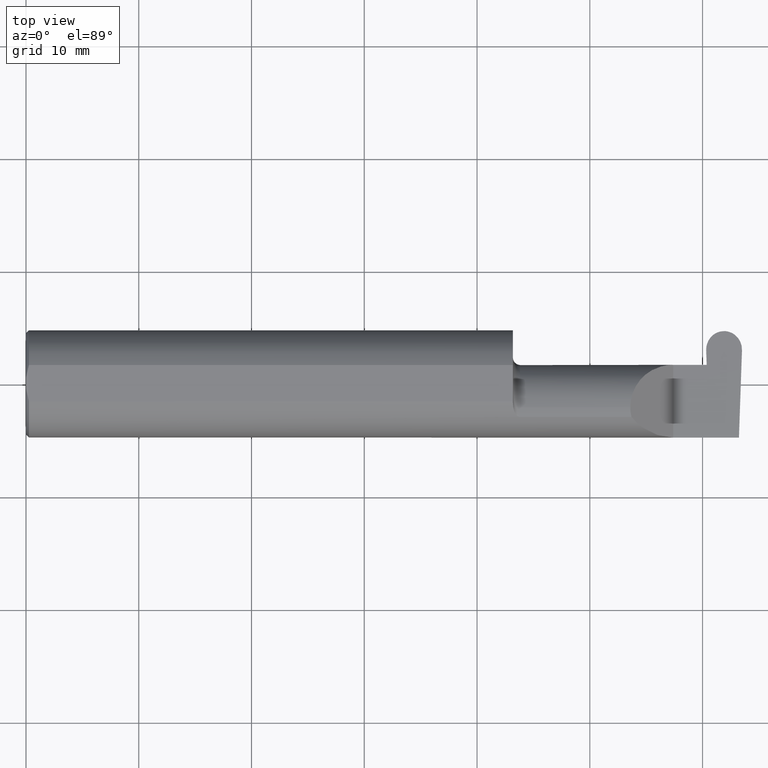
[diagram: clean part render]
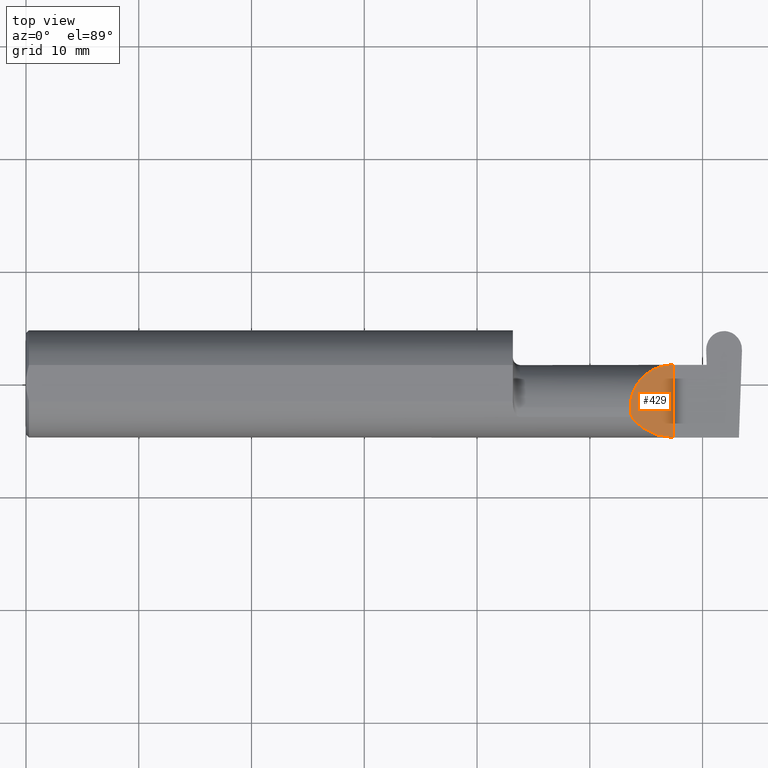
[diagram: same view with one face highlighted and labeled with its STEP entity id]
A machine part, top view. The second image highlights one B-rep face of the part: STEP entity #429.
In plain terms, the highlighted planar face has unit normal (-0.7071, 0, -0.7071).
Its self-contained STEP definition (entity closure, byte-faithful):
#17 = EDGE_CURVE ( 'NONE', #311, #203, #228, .T. ) ;
#33 = DIRECTION ( 'NONE',  ( -0.000000000000000000, 1.000000000000000000, -0.000000000000000000 ) ) ;
#45 = DIRECTION ( 'NONE',  ( -0.7071067811865441310, 0.000000000000000000, -0.7071067811865510144 ) ) ;
#50 =( BOUNDED_CURVE ( )  B_SPLINE_CURVE ( 3, ( #500, #363, #804, #241 ),
 .UNSPECIFIED., .F., .T. ) 
 B_SPLINE_CURVE_WITH_KNOTS ( ( 4, 4 ),
 ( 0.000000000000000000, 1.570796326794896336 ),
 .UNSPECIFIED. ) 
 CURVE ( )  GEOMETRIC_REPRESENTATION_ITEM ( )  RATIONAL_B_SPLINE_CURVE ( ( 1.000000000000000000, 0.8047378541243650485, 0.8047378541243650485, 1.000000000000000000 ) ) 
 REPRESENTATION_ITEM ( '' )  );
#59 = CARTESIAN_POINT ( 'NONE',  ( 2.111300037307153765, -0.1061291577212410409, 0.1486999626928446061 ) ) ;
#81 = CARTESIAN_POINT ( 'NONE',  ( 2.260000000000000231, -0.1873499999999999888, 2.939152317953647352E-17 ) ) ;
#82 = ORIENTED_EDGE ( 'NONE', *, *, #17, .T. ) ;
#88 = CARTESIAN_POINT ( 'NONE',  ( 2.109999999999998987, -0.08334999999999999354, 0.1499999999999999944 ) ) ;
#90 = CARTESIAN_POINT ( 'NONE',  ( 2.113883229301068312, -0.1172600179964008171, 0.1461167706989301707 ) ) ;
#97 = DIRECTION ( 'NONE',  ( -0.7071067811865509034, 0.000000000000000000, 0.7071067811865440200 ) ) ;
#136 =( BOUNDED_CURVE ( )  B_SPLINE_CURVE ( 3, ( #623, #59, #310, #495 ),
 .UNSPECIFIED., .F., .T. ) 
 B_SPLINE_CURVE_WITH_KNOTS ( ( 4, 4 ),
 ( 6.055147272130141367, 6.283185307179586232 ),
 .UNSPECIFIED. ) 
 CURVE ( )  GEOMETRIC_REPRESENTATION_ITEM ( )  RATIONAL_B_SPLINE_CURVE ( ( 1.000000000000000000, 0.9956712472009929815, 0.9956712472009929815, 1.000000000000000000 ) ) 
 REPRESENTATION_ITEM ( '' )  );
#190 = ORIENTED_EDGE ( 'NONE', *, *, #329, .F. ) ;
#192 = EDGE_CURVE ( 'NONE', #717, #203, #50, .T. ) ;
#203 = VERTEX_POINT ( 'NONE', #809 ) ;
#215 = CARTESIAN_POINT ( 'NONE',  ( 2.202189699843948745, -0.1873500000000000443, 0.05781030015605096578 ) ) ;
#218 = EDGE_CURVE ( 'NONE', #518, #717, #136, .T. ) ;
#228 = LINE ( 'NONE', #801, #608 ) ;
#241 = CARTESIAN_POINT ( 'NONE',  ( 2.260000000000000231, 0.06664999999999998703, 9.797174393178831081E-17 ) ) ;
#262 = ORIENTED_EDGE ( 'NONE', *, *, #192, .F. ) ;
#276 = EDGE_LOOP ( 'NONE', ( #364, #190, #82, #262 ) ) ;
#310 = CARTESIAN_POINT ( 'NONE',  ( 2.109999999999998543, -0.09477667630339427218, 0.1499999999999999667 ) ) ;
#311 = VERTEX_POINT ( 'NONE', #81 ) ;
#329 = EDGE_CURVE ( 'NONE', #311, #518, #498, .T. ) ;
#341 = CARTESIAN_POINT ( 'NONE',  ( 2.113883229301068312, -0.1172600179964008171, 0.1461167706989301707 ) ) ;
#349 = CARTESIAN_POINT ( 'NONE',  ( 2.260000000000000231, -0.2500000000000000555, 2.939152317953647352E-17 ) ) ;
#363 = CARTESIAN_POINT ( 'NONE',  ( 2.109999999999998543, 0.004517965644035734120, 0.1499999999999999667 ) ) ;
#364 = ORIENTED_EDGE ( 'NONE', *, *, #218, .F. ) ;
#429 = ADVANCED_FACE ( 'NONE', ( #725 ), #610, .F. ) ;
#466 = AXIS2_PLACEMENT_3D ( 'NONE', #349, #45, #97 ) ;
#495 = CARTESIAN_POINT ( 'NONE',  ( 2.109999999999998987, -0.08334999999999999354, 0.1499999999999999944 ) ) ;
#498 =( BOUNDED_CURVE ( )  B_SPLINE_CURVE ( 3, ( #574, #215, #652, #90 ),
 .UNSPECIFIED., .F., .T. ) 
 B_SPLINE_CURVE_WITH_KNOTS ( ( 4, 4 ),
 ( 4.712388980384688786, 5.606916381293135743 ),
 .UNSPECIFIED. ) 
 CURVE ( )  GEOMETRIC_REPRESENTATION_ITEM ( )  RATIONAL_B_SPLINE_CURVE ( ( 1.000000000000000000, 0.9344226172588803170, 0.9344226172588803170, 1.000000000000000000 ) ) 
 REPRESENTATION_ITEM ( '' )  );
#500 = CARTESIAN_POINT ( 'NONE',  ( 2.109999999999998987, -0.08334999999999999354, 0.1499999999999999944 ) ) ;
#518 = VERTEX_POINT ( 'NONE', #341 ) ;
#574 = CARTESIAN_POINT ( 'NONE',  ( 2.260000000000000231, -0.1873499999999999888, 2.939152317953647352E-17 ) ) ;
#608 = VECTOR ( 'NONE', #33, 39.37007874015748143 ) ;
#610 = PLANE ( 'NONE',  #466 ) ;
#623 = CARTESIAN_POINT ( 'NONE',  ( 2.113883229301068312, -0.1172600179964008171, 0.1461167706989301707 ) ) ;
#652 = CARTESIAN_POINT ( 'NONE',  ( 2.150065971957465294, -0.1623470442677542591, 0.1099340280425336325 ) ) ;
#717 = VERTEX_POINT ( 'NONE', #88 ) ;
#725 = FACE_OUTER_BOUND ( 'NONE', #276, .T. ) ;
#801 = CARTESIAN_POINT ( 'NONE',  ( 2.260000000000000231, -0.2500000000000000555, 2.939152317953647352E-17 ) ) ;
#804 = CARTESIAN_POINT ( 'NONE',  ( 2.172132034355963359, 0.06664999999999998703, 0.08786796564403573373 ) ) ;
#809 = CARTESIAN_POINT ( 'NONE',  ( 2.260000000000000231, 0.06664999999999998703, 9.797174393178831081E-17 ) ) ;